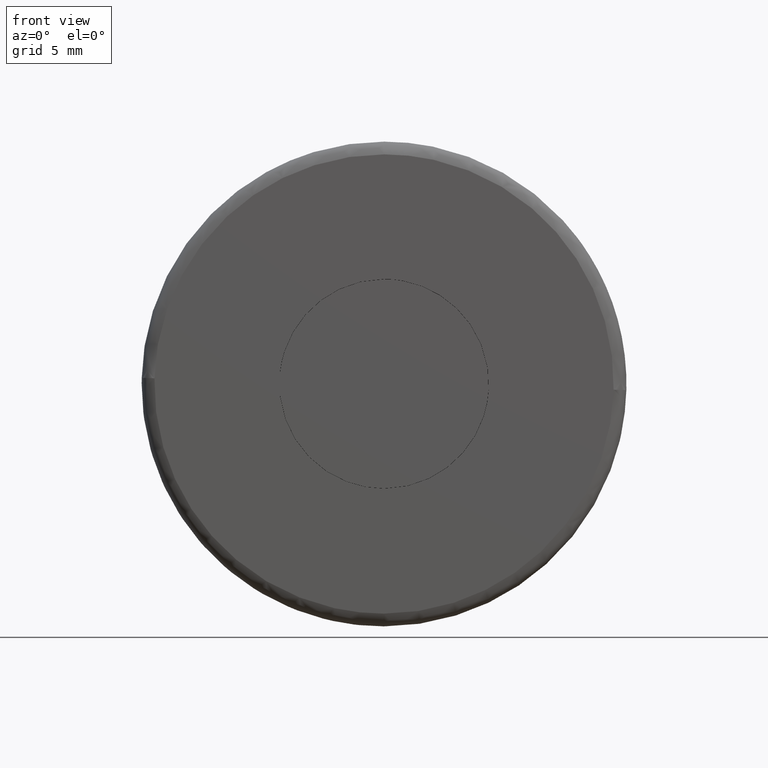
[diagram: clean part render]
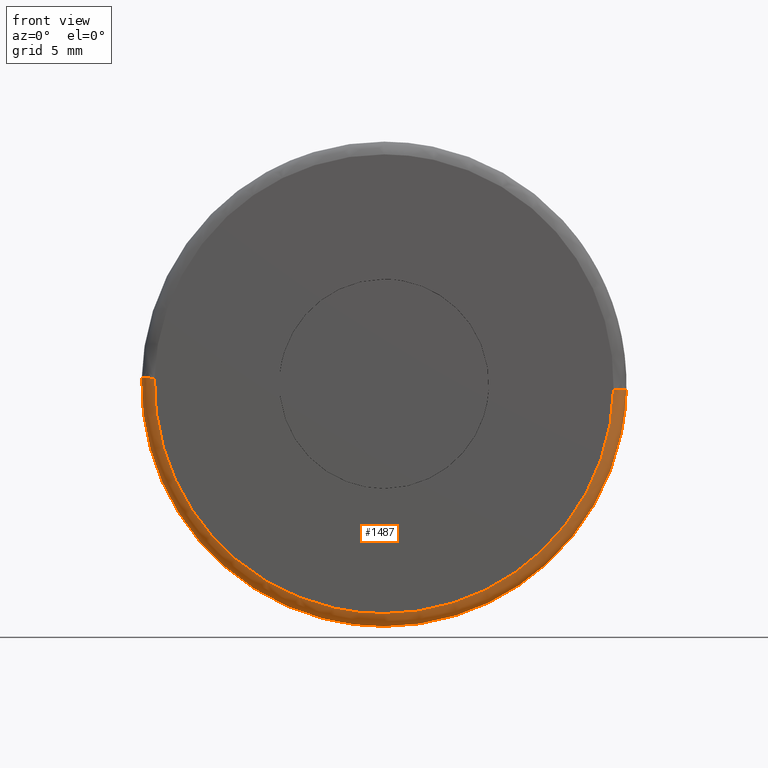
[diagram: same view with one face highlighted and labeled with its STEP entity id]
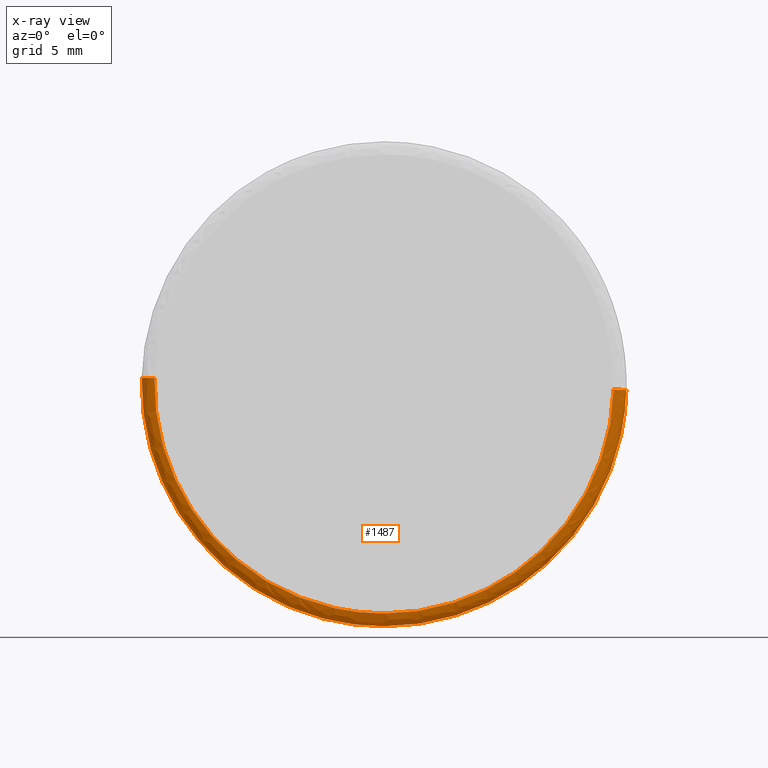
[diagram: x-ray of the same camera — body ghosted, the highlighted face saturated]
A machine part, front view. The second image highlights one B-rep face of the part: STEP entity #1487.
The next image is the same camera in x-ray: the body ghosted, the highlighted face saturated — about 0% of this face is hidden behind the body in this view.
In plain terms, the highlighted face is a freeform B-spline surface patch.
Its self-contained STEP definition (entity closure, byte-faithful):
#1184=CARTESIAN_POINT('',(-9.496999798191341,0.499999999859289,0.238735906711980));
#1185=VERTEX_POINT('',#1184);
#1275=CARTESIAN_POINT('',(9.496999798191341,0.499999999859289,-0.238735906711978));
#1276=VERTEX_POINT('',#1275);
#1292=CARTESIAN_POINT('',(0.0,0.500000000000000,-9.500000000000000));
#1293=VERTEX_POINT('',#1292);
#1294=CARTESIAN_POINT('',(0.0,0.500000000000000,-9.500000000000000));
#1295=CARTESIAN_POINT('',(9.264189823715638,0.500000000000000,-9.499999999999998));
#1296=CARTESIAN_POINT('',(9.496999798191341,0.499999999859289,-0.238735906711978));
#1304=(BOUNDED_CURVE()B_SPLINE_CURVE(2,(#1294,#1295,#1296),.UNSPECIFIED.,.F.,.U.)B_SPLINE_CURVE_WITH_KNOTS((3,3),(0.0,0.245579891769798),.UNSPECIFIED.)CURVE()GEOMETRIC_REPRESENTATION_ITEM()RATIONAL_B_SPLINE_CURVE((1.0,0.712285260094739,0.989826157681554))REPRESENTATION_ITEM(''));
#1305=EDGE_CURVE('',#1293,#1276,#1304,.T.);
#1307=CARTESIAN_POINT('',(-9.496999798191341,0.499999999859289,0.238735906711980));
#1308=CARTESIAN_POINT('',(-9.500000000000000,0.500000000000000,0.119386805172380));
#1309=CARTESIAN_POINT('',(-9.500000000000000,0.500000000000000,-1.773316E-016));
#1310=CARTESIAN_POINT('',(-9.500000000000000,0.500000000000000,-9.500000000000000));
#1311=CARTESIAN_POINT('',(0.0,0.500000000000000,-9.500000000000000));
#1319=(BOUNDED_CURVE()B_SPLINE_CURVE(2,(#1307,#1308,#1309,#1310,#1311),.UNSPECIFIED.,.F.,.U.)B_SPLINE_CURVE_WITH_KNOTS((3,2,3),(0.745579891769797,0.750000000000000,1.0),.UNSPECIFIED.)CURVE()GEOMETRIC_REPRESENTATION_ITEM()RATIONAL_B_SPLINE_CURVE((0.989826157681553,0.994821521091809,1.0,0.707106781186548,1.0))REPRESENTATION_ITEM(''));
#1320=EDGE_CURVE('',#1185,#1293,#1319,.T.);
#1400=CARTESIAN_POINT('',(-9.495783334874179,0.534862112566139,0.238705327215110));
#1401=CARTESIAN_POINT('',(-9.734488662089293,0.534862112566139,-9.257078007659066));
#1402=CARTESIAN_POINT('',(-0.238705327215113,0.534862112566139,-9.495783334874179));
#1403=CARTESIAN_POINT('',(9.257078007659066,0.534862112566139,-9.734488662089293));
#1404=CARTESIAN_POINT('',(9.495783334874179,0.534862112566139,-0.238705327215113));
#1405=CARTESIAN_POINT('',(-9.535857199544944,-0.038668334935734,0.239712705399896));
#1406=CARTESIAN_POINT('',(-9.775569904944840,-0.038668334935734,-9.296144494145041));
#1407=CARTESIAN_POINT('',(-0.239712705399899,-0.038668334935734,-9.535857199544942));
#1408=CARTESIAN_POINT('',(9.296144494145041,-0.038668334935734,-9.775569904944840));
#1409=CARTESIAN_POINT('',(9.535857199544942,-0.038668334935734,-0.239712705399900));
#1410=CARTESIAN_POINT('',(-8.962492943248043,0.001203854216562,0.225299455056436));
#1411=CARTESIAN_POINT('',(-9.187792398304476,0.001203854216562,-8.737193488191602));
#1412=CARTESIAN_POINT('',(-0.225299455056438,0.001203854216562,-8.962492943248043));
#1413=CARTESIAN_POINT('',(8.737193488191602,0.001203854216562,-9.187792398304479));
#1414=CARTESIAN_POINT('',(8.962492943248043,0.001203854216562,-0.225299455056439));
#1422=(BOUNDED_SURFACE()B_SPLINE_SURFACE(2,2,((#1400,#1405,#1410),(#1401,#1406,#1411),(#1402,#1407,#1412),(#1403,#1408,#1413),(#1404,#1409,#1414)),.UNSPECIFIED.,.F.,.F.,.U.)B_SPLINE_SURFACE_WITH_KNOTS((3,2,3),(3,3),(0.0,15.738099231042860,31.476198462085730),(0.0,0.911185700394119),.UNSPECIFIED.)GEOMETRIC_REPRESENTATION_ITEM()RATIONAL_B_SPLINE_SURFACE(((0.910892958135503,0.599412749565811,0.915966979117423),(0.644098587632688,0.423848819947659,0.647686462276886),(0.910892958135503,0.599412749565811,0.915966979117423),(0.644098587632688,0.423848819947659,0.647686462276886),(0.910892958135503,0.599412749565811,0.915966979117423)))REPRESENTATION_ITEM('')SURFACE());
#1423=CARTESIAN_POINT('',(-8.997157704102083,-7.485135E-016,0.226170859018032));
#1424=VERTEX_POINT('',#1423);
#1425=CARTESIAN_POINT('',(0.0,-1.653219E-015,-9.0));
#1426=VERTEX_POINT('',#1425);
#1427=CARTESIAN_POINT('',(-8.997157704102083,-7.485135E-016,0.226170859018032));
#1428=CARTESIAN_POINT('',(-9.0,-1.653219E-015,0.113103289124523));
#1429=CARTESIAN_POINT('',(-9.0,-1.653219E-015,-1.773316E-016));
#1430=CARTESIAN_POINT('',(-9.0,-1.653219E-015,-9.0));
#1431=CARTESIAN_POINT('',(0.0,-1.653219E-015,-9.0));
#1439=(BOUNDED_CURVE()B_SPLINE_CURVE(2,(#1427,#1428,#1429,#1430,#1431),.UNSPECIFIED.,.F.,.U.)B_SPLINE_CURVE_WITH_KNOTS((3,2,3),(0.745579891769259,0.750000000000000,1.0),.UNSPECIFIED.)CURVE()GEOMETRIC_REPRESENTATION_ITEM()RATIONAL_B_SPLINE_CURVE((0.989826157680336,0.994821521091178,1.0,0.707106781186547,1.0))REPRESENTATION_ITEM(''));
#1440=EDGE_CURVE('',#1424,#1426,#1439,.T.);
#1441=ORIENTED_EDGE('',*,*,#1440,.F.);
#1442=CARTESIAN_POINT('',(-9.496999798191341,0.499999999859289,0.238735906711980));
#1443=CARTESIAN_POINT('',(-9.496999797910013,1.105827E-009,0.238735906704634));
#1444=CARTESIAN_POINT('',(-8.997157704102083,-7.485135E-016,0.226170859018032));
#1452=(BOUNDED_CURVE()B_SPLINE_CURVE(2,(#1442,#1443,#1444),.UNSPECIFIED.,.F.,.U.)B_SPLINE_CURVE_WITH_KNOTS((3,3),(-1.723441281405269,-0.263586881216809),.UNSPECIFIED.)CURVE()GEOMETRIC_REPRESENTATION_ITEM()RATIONAL_B_SPLINE_CURVE((0.883897566934423,0.626638727744861,0.888510408241346))REPRESENTATION_ITEM(''));
#1453=EDGE_CURVE('',#1185,#1424,#1452,.T.);
#1454=ORIENTED_EDGE('',*,*,#1453,.F.);
#1455=ORIENTED_EDGE('',*,*,#1320,.T.);
#1456=ORIENTED_EDGE('',*,*,#1305,.T.);
#1457=CARTESIAN_POINT('',(8.997157704102083,-7.328943E-016,-0.226170859018029));
#1458=VERTEX_POINT('',#1457);
#1459=CARTESIAN_POINT('',(9.496999798191341,0.499999999859289,-0.238735906711978));
#1460=CARTESIAN_POINT('',(9.496999797910013,1.105827E-009,-0.238735906704633));
#1461=CARTESIAN_POINT('',(8.997157704102083,-7.328943E-016,-0.226170859018029));
#1469=(BOUNDED_CURVE()B_SPLINE_CURVE(2,(#1459,#1460,#1461),.UNSPECIFIED.,.F.,.U.)B_SPLINE_CURVE_WITH_KNOTS((3,3),(-1.723441281405269,-0.263586881216810),.UNSPECIFIED.)CURVE()GEOMETRIC_REPRESENTATION_ITEM()RATIONAL_B_SPLINE_CURVE((0.883897566934423,0.626638727744861,0.888510408241346))REPRESENTATION_ITEM(''));
#1470=EDGE_CURVE('',#1276,#1458,#1469,.T.);
#1471=ORIENTED_EDGE('',*,*,#1470,.T.);
#1472=CARTESIAN_POINT('',(0.0,-1.653219E-015,-9.0));
#1473=CARTESIAN_POINT('',(8.776600885598329,-1.653219E-015,-9.000000000000002));
#1474=CARTESIAN_POINT('',(8.997157704102083,-7.328943E-016,-0.226170859018029));
#1482=(BOUNDED_CURVE()B_SPLINE_CURVE(2,(#1472,#1473,#1474),.UNSPECIFIED.,.F.,.U.)B_SPLINE_CURVE_WITH_KNOTS((3,3),(0.0,0.245579891769259),.UNSPECIFIED.)CURVE()GEOMETRIC_REPRESENTATION_ITEM()RATIONAL_B_SPLINE_CURVE((1.0,0.712285260095370,0.989826157680337))REPRESENTATION_ITEM(''));
#1483=EDGE_CURVE('',#1426,#1458,#1482,.T.);
#1484=ORIENTED_EDGE('',*,*,#1483,.F.);
#1485=EDGE_LOOP('',(#1441,#1454,#1455,#1456,#1471,#1484));
#1486=FACE_OUTER_BOUND('',#1485,.T.);
#1487=ADVANCED_FACE('',(#1486),#1422,.T.);